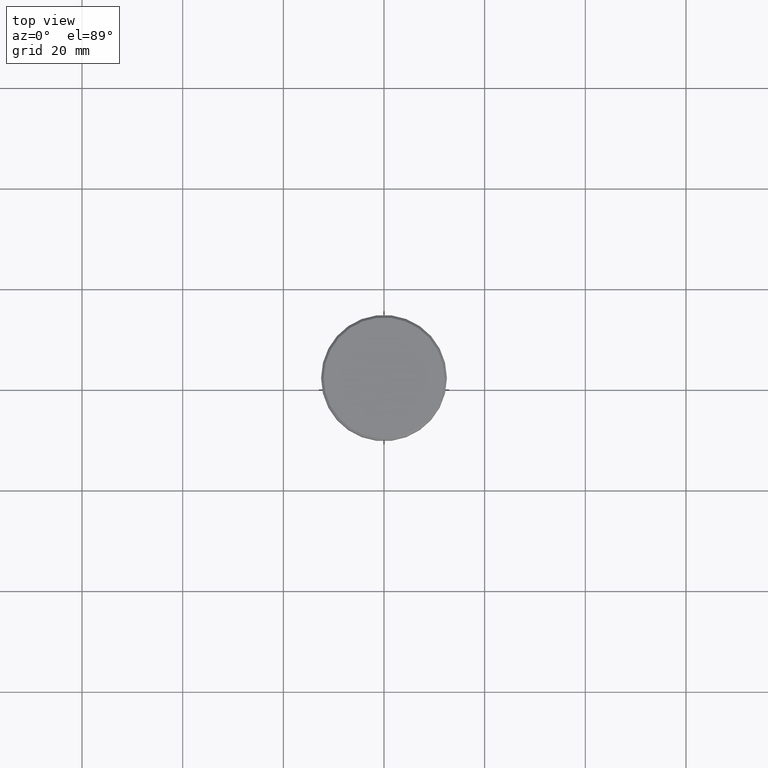
[diagram: clean part render]
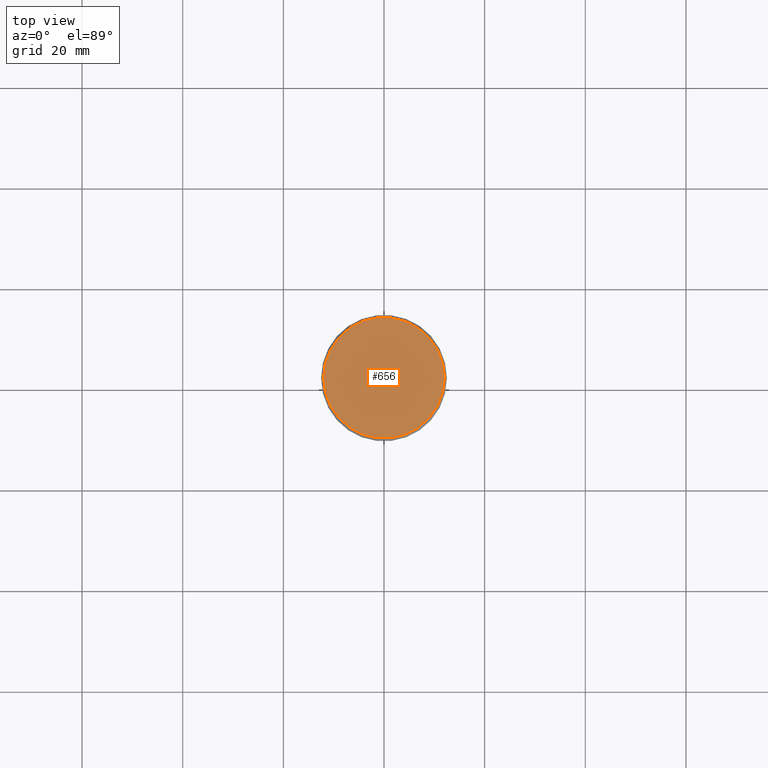
[diagram: same view with one face highlighted and labeled with its STEP entity id]
A machine part, top view. The second image highlights one B-rep face of the part: STEP entity #656.
In plain terms, the highlighted planar face has unit normal (0, -0, 1).
Its self-contained STEP definition (entity closure, byte-faithful):
#91 = DIRECTION ( 'NONE',  ( -0.000000000000000000, -0.000000000000000000, 1.000000000000000000 ) ) ;
#160 = ORIENTED_EDGE ( 'NONE', *, *, #960, .T. ) ;
#182 = DIRECTION ( 'NONE',  ( 1.000000000000000000, 0.000000000000000000, 0.000000000000000000 ) ) ;
#185 = DIRECTION ( 'NONE',  ( 0.000000000000000000, -0.000000000000000000, 1.000000000000000000 ) ) ;
#279 = DIRECTION ( 'NONE',  ( 1.000000000000000000, 0.000000000000000000, 0.000000000000000000 ) ) ;
#341 = AXIS2_PLACEMENT_3D ( 'NONE', #1019, #91, #279 ) ;
#373 = FACE_OUTER_BOUND ( 'NONE', #842, .T. ) ;
#387 = CARTESIAN_POINT ( 'NONE',  ( -11.99999999999999645, 0.000000000000000000, 0.000000000000000000 ) ) ;
#436 = DIRECTION ( 'NONE',  ( -0.000000000000000000, -0.000000000000000000, 1.000000000000000000 ) ) ;
#471 = AXIS2_PLACEMENT_3D ( 'NONE', #981, #436, #608 ) ;
#608 = DIRECTION ( 'NONE',  ( 1.000000000000000000, 0.000000000000000000, 0.000000000000000000 ) ) ;
#656 = ADVANCED_FACE ( 'NONE', ( #373 ), #1111, .T. ) ;
#676 = EDGE_CURVE ( 'NONE', #1151, #762, #885, .T. ) ;
#713 = AXIS2_PLACEMENT_3D ( 'NONE', #918, #185, #182 ) ;
#727 = ORIENTED_EDGE ( 'NONE', *, *, #676, .T. ) ;
#734 = CIRCLE ( 'NONE', #471, 11.99999999999999645 ) ;
#762 = VERTEX_POINT ( 'NONE', #387 ) ;
#842 = EDGE_LOOP ( 'NONE', ( #160, #727 ) ) ;
#885 = CIRCLE ( 'NONE', #341, 11.99999999999999645 ) ;
#918 = CARTESIAN_POINT ( 'NONE',  ( 0.000000000000000000, 0.000000000000000000, 0.000000000000000000 ) ) ;
#957 = CARTESIAN_POINT ( 'NONE',  ( 11.99999999999999645, 1.500192328955507537E-15, 0.000000000000000000 ) ) ;
#960 = EDGE_CURVE ( 'NONE', #762, #1151, #734, .T. ) ;
#981 = CARTESIAN_POINT ( 'NONE',  ( 0.000000000000000000, 0.000000000000000000, 0.000000000000000000 ) ) ;
#1019 = CARTESIAN_POINT ( 'NONE',  ( 0.000000000000000000, 0.000000000000000000, 0.000000000000000000 ) ) ;
#1111 = PLANE ( 'NONE',  #713 ) ;
#1151 = VERTEX_POINT ( 'NONE', #957 ) ;